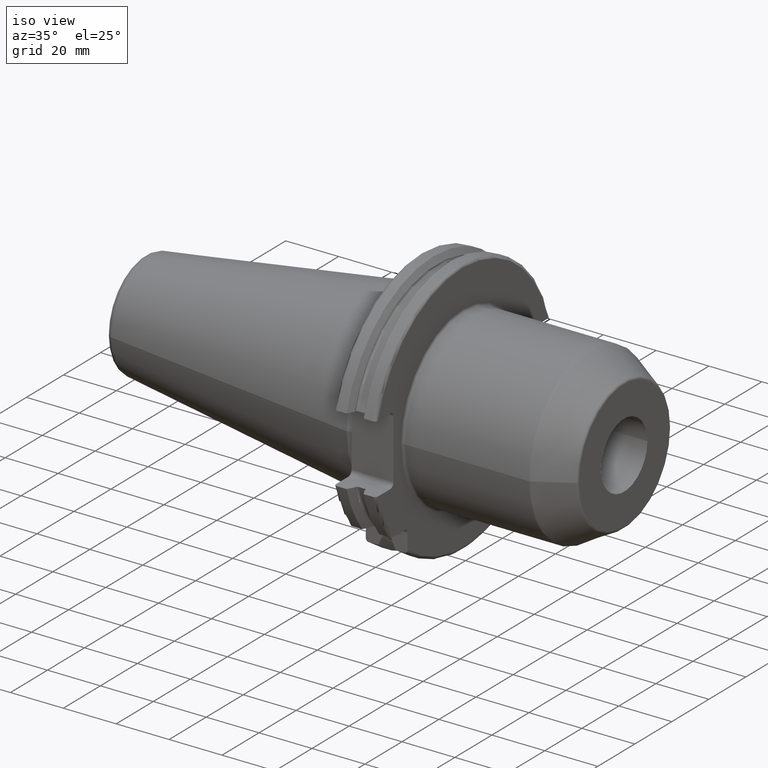
[diagram: clean part render]
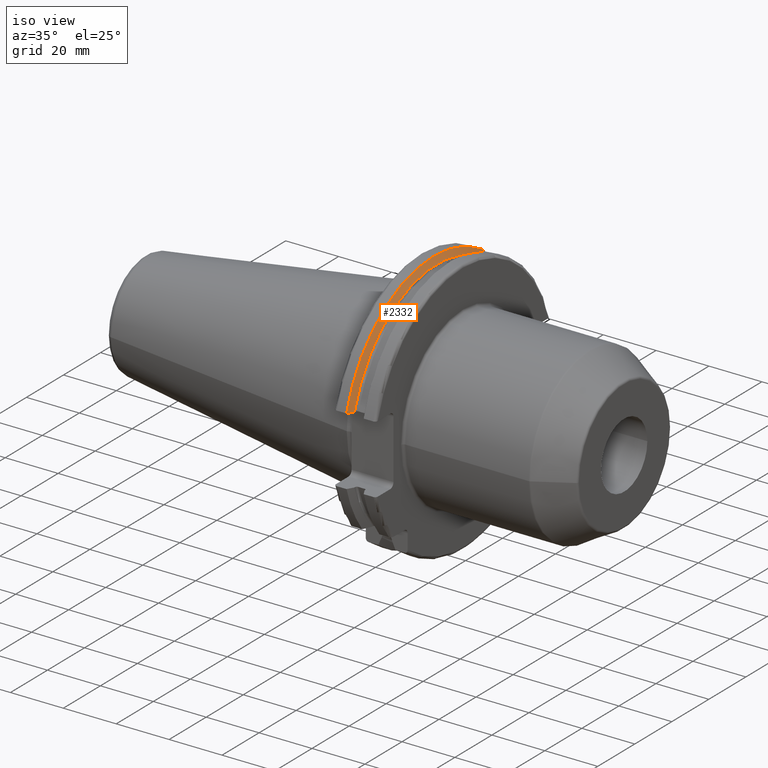
[diagram: same view with one face highlighted and labeled with its STEP entity id]
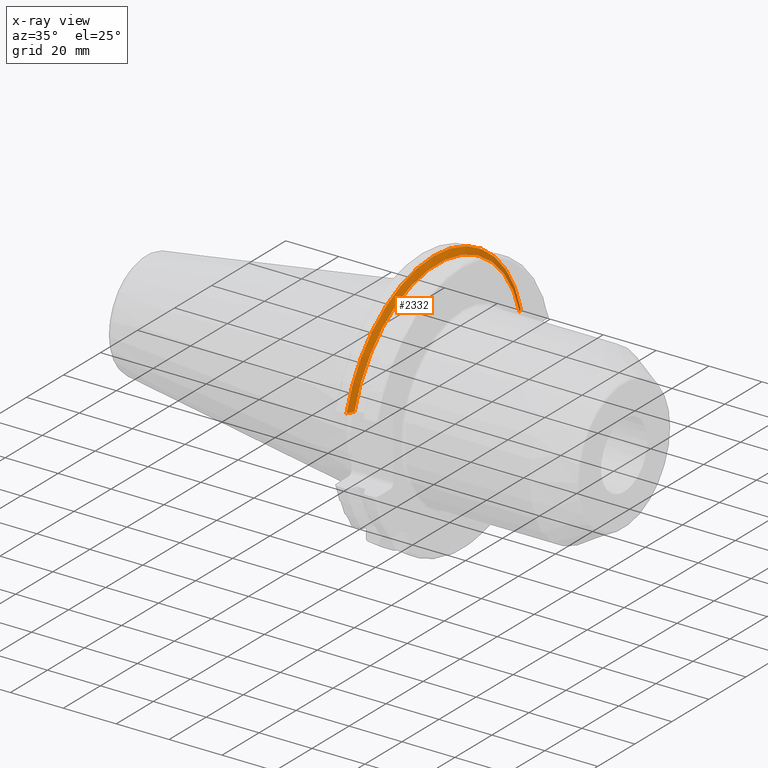
[diagram: x-ray of the same camera — body ghosted, the highlighted face saturated]
A machine part, iso view. The second image highlights one B-rep face of the part: STEP entity #2332.
The next image is the same camera in x-ray: the body ghosted, the highlighted face saturated — about 0% of this face is hidden behind the body in this view.
In plain terms, the highlighted conical surface has half-angle 60 deg.
Its self-contained STEP definition (entity closure, byte-faithful):
#398=CARTESIAN_POINT('',(7.934621614173E0,0.E0,0.E0));
#399=DIRECTION('',(1.E0,0.E0,0.E0));
#400=DIRECTION('',(0.E0,9.643354064066E-1,2.646832521159E-1));
#401=AXIS2_PLACEMENT_3D('',#398,#399,#400);
#425=CARTESIAN_POINT('',(7.934621614173E0,4.699929686974E1,1.29E1));
#426=CARTESIAN_POINT('',(8.085480915039E0,4.672833723043E1,1.29E1));
#427=CARTESIAN_POINT('',(8.384988643814E0,4.619006057422E1,1.29E1));
#428=CARTESIAN_POINT('',(8.827579780447E0,4.539363402665E1,1.29E1));
#429=CARTESIAN_POINT('',(9.118260754177E0,4.486988275438E1,1.29E1));
#430=CARTESIAN_POINT('',(9.2625E0,4.460981716077E1,1.29E1));
#432=CARTESIAN_POINT('',(9.2625E0,-4.460981716077E1,1.29E1));
#433=CARTESIAN_POINT('',(9.118283773553E0,-4.486984125009E1,1.29E1));
#434=CARTESIAN_POINT('',(8.827633549554E0,-4.539353719098E1,1.29E1));
#435=CARTESIAN_POINT('',(8.385043355543E0,-4.618996220278E1,1.29E1));
#436=CARTESIAN_POINT('',(8.085504386120E0,-4.672829507383E1,1.29E1));
#437=CARTESIAN_POINT('',(7.934621614173E0,-4.699929686974E1,1.29E1));
#447=CARTESIAN_POINT('',(9.2625E0,0.E0,0.E0));
#448=DIRECTION('',(1.E0,0.E0,0.E0));
#449=DIRECTION('',(0.E0,9.606411165078E-1,2.777924499957E-1));
#450=AXIS2_PLACEMENT_3D('',#447,#448,#449);
#1582=CARTESIAN_POINT('',(9.2625E0,4.460981716077E1,1.29E1));
#1584=VERTEX_POINT('',#1582);
#1594=CARTESIAN_POINT('',(9.2625E0,-4.460981716077E1,1.29E1));
#1596=VERTEX_POINT('',#1594);
#1620=VERTEX_POINT('',#425);
#1621=VERTEX_POINT('',#437);
#2320=CARTESIAN_POINT('',(8.598560807087E0,0.E0,0.E0));
#2321=DIRECTION('',(-1.E0,0.E0,0.E0));
#2322=DIRECTION('',(0.E0,1.E0,0.E0));
#2323=AXIS2_PLACEMENT_3D('',#2320,#2321,#2322);
#2324=CONICAL_SURFACE('',#2323,4.758752358474E1,6.E1);
#2325=ORIENTED_EDGE('',*,*,#2272,.T.);
#2327=ORIENTED_EDGE('',*,*,#2326,.T.);
#2328=ORIENTED_EDGE('',*,*,#2201,.T.);
#2329=ORIENTED_EDGE('',*,*,#2300,.F.);
#2330=EDGE_LOOP('',(#2325,#2327,#2328,#2329));
#2331=FACE_OUTER_BOUND('',#2330,.F.);
#2332=ADVANCED_FACE('',(#2331),#2324,.T.);
#402=CIRCLE('',#401,4.87375E1);
#431=B_SPLINE_CURVE_WITH_KNOTS('',3,(#425,#426,#427,#428,#429,#430),
.UNSPECIFIED.,.F.,.F.,(4,1,1,4),(0.E0,3.333333333333E-1,6.666666666667E-1,1.E0),
.UNSPECIFIED.);
#438=B_SPLINE_CURVE_WITH_KNOTS('',3,(#432,#433,#434,#435,#436,#437),
.UNSPECIFIED.,.F.,.F.,(4,1,1,4),(0.E0,3.333333333333E-1,6.666666666667E-1,1.E0),
.UNSPECIFIED.);
#451=CIRCLE('',#450,4.643754716948E1);
#2201=EDGE_CURVE('',#1596,#1621,#438,.T.);
#2272=EDGE_CURVE('',#1620,#1584,#431,.T.);
#2300=EDGE_CURVE('',#1620,#1621,#402,.T.);
#2326=EDGE_CURVE('',#1584,#1596,#451,.T.);